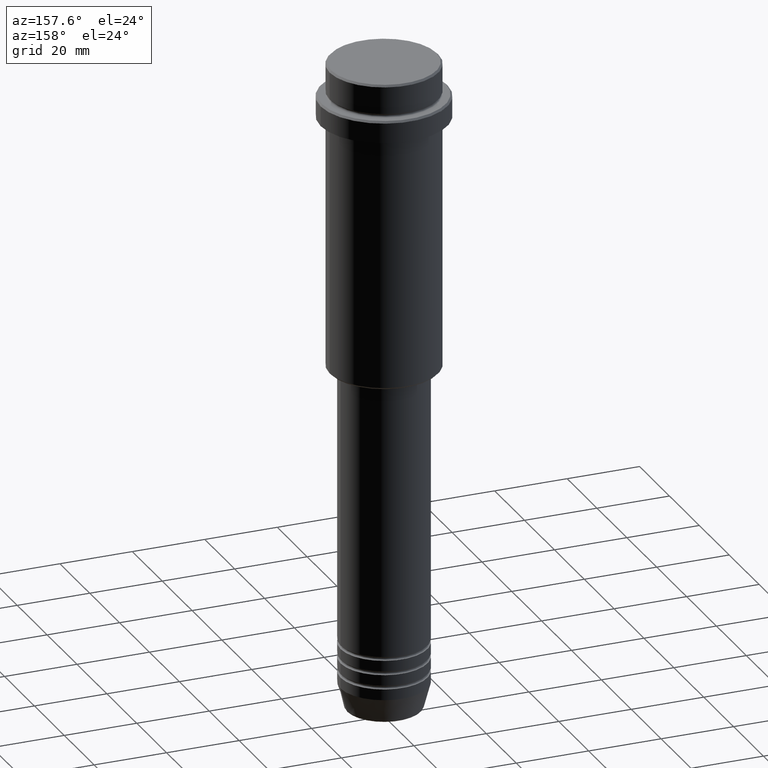
[diagram: clean part render]
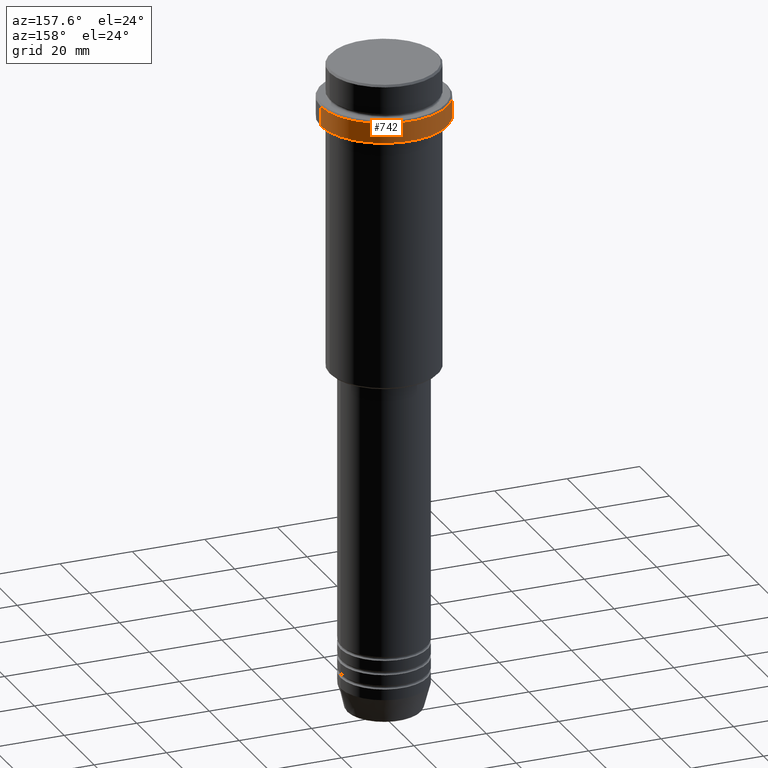
[diagram: same view with one face highlighted and labeled with its STEP entity id]
A machine part, auxiliary view. The second image highlights one B-rep face of the part: STEP entity #742.
In plain terms, the highlighted cylindrical surface (partial cylindrical patch) has radius 17.5 mm, axis along (-0, -0, 1).
Its self-contained STEP definition (entity closure, byte-faithful):
#39 = CARTESIAN_POINT ( 'NONE',  ( -17.50000000000000000, 2.143131898507868248E-15, -9.500000000000000000 ) ) ;
#110 = CYLINDRICAL_SURFACE ( 'NONE', #1384, 17.50000000000000000 ) ;
#145 = CIRCLE ( 'NONE', #942, 17.50000000000000000 ) ;
#171 = CIRCLE ( 'NONE', #767, 17.50000000000000000 ) ;
#183 = DIRECTION ( 'NONE',  ( 1.000000000000000000, 0.000000000000000000, 0.000000000000000000 ) ) ;
#185 = DIRECTION ( 'NONE',  ( -0.000000000000000000, -0.000000000000000000, 1.000000000000000000 ) ) ;
#309 = CARTESIAN_POINT ( 'NONE',  ( 17.50000000000000000, 0.000000000000000000, 0.000000000000000000 ) ) ;
#317 = EDGE_CURVE ( 'NONE', #572, #398, #403, .T. ) ;
#319 = CARTESIAN_POINT ( 'NONE',  ( 0.000000000000000000, 0.000000000000000000, -15.00000000000000000 ) ) ;
#398 = VERTEX_POINT ( 'NONE', #1357 ) ;
#403 = LINE ( 'NONE', #309, #1256 ) ;
#507 = CARTESIAN_POINT ( 'NONE',  ( 17.50000000000000000, 0.000000000000000000, -15.00000000000000000 ) ) ;
#508 = EDGE_CURVE ( 'NONE', #572, #1141, #145, .T. ) ;
#544 = EDGE_CURVE ( 'NONE', #1267, #398, #171, .T. ) ;
#566 = FACE_OUTER_BOUND ( 'NONE', #1011, .T. ) ;
#572 = VERTEX_POINT ( 'NONE', #507 ) ;
#722 = DIRECTION ( 'NONE',  ( -0.000000000000000000, -0.000000000000000000, 1.000000000000000000 ) ) ;
#742 = ADVANCED_FACE ( 'NONE', ( #566 ), #110, .T. ) ;
#757 = DIRECTION ( 'NONE',  ( -0.000000000000000000, -0.000000000000000000, 1.000000000000000000 ) ) ;
#767 = AXIS2_PLACEMENT_3D ( 'NONE', #1299, #974, #1307 ) ;
#818 = LINE ( 'NONE', #1339, #962 ) ;
#920 = ORIENTED_EDGE ( 'NONE', *, *, #1276, .T. ) ;
#933 = ORIENTED_EDGE ( 'NONE', *, *, #317, .F. ) ;
#942 = AXIS2_PLACEMENT_3D ( 'NONE', #319, #757, #183 ) ;
#962 = VECTOR ( 'NONE', #722, 1000.000000000000000 ) ;
#974 = DIRECTION ( 'NONE',  ( 0.000000000000000000, 0.000000000000000000, -1.000000000000000000 ) ) ;
#990 = CARTESIAN_POINT ( 'NONE',  ( 0.000000000000000000, 0.000000000000000000, 0.000000000000000000 ) ) ;
#994 = ORIENTED_EDGE ( 'NONE', *, *, #544, .T. ) ;
#995 = DIRECTION ( 'NONE',  ( -0.000000000000000000, -0.000000000000000000, 1.000000000000000000 ) ) ;
#1011 = EDGE_LOOP ( 'NONE', ( #1235, #920, #994, #933 ) ) ;
#1085 = CARTESIAN_POINT ( 'NONE',  ( -17.50000000000000000, 2.143131898507868248E-15, -15.00000000000000000 ) ) ;
#1098 = DIRECTION ( 'NONE',  ( 1.000000000000000000, 0.000000000000000000, 0.000000000000000000 ) ) ;
#1141 = VERTEX_POINT ( 'NONE', #1085 ) ;
#1235 = ORIENTED_EDGE ( 'NONE', *, *, #508, .T. ) ;
#1256 = VECTOR ( 'NONE', #185, 1000.000000000000000 ) ;
#1267 = VERTEX_POINT ( 'NONE', #39 ) ;
#1276 = EDGE_CURVE ( 'NONE', #1141, #1267, #818, .T. ) ;
#1299 = CARTESIAN_POINT ( 'NONE',  ( 0.000000000000000000, 0.000000000000000000, -9.500000000000000000 ) ) ;
#1307 = DIRECTION ( 'NONE',  ( 1.000000000000000000, 0.000000000000000000, 0.000000000000000000 ) ) ;
#1339 = CARTESIAN_POINT ( 'NONE',  ( -17.50000000000000000, 2.143131898507868248E-15, 0.000000000000000000 ) ) ;
#1357 = CARTESIAN_POINT ( 'NONE',  ( 17.50000000000000000, 0.000000000000000000, -9.500000000000000000 ) ) ;
#1384 = AXIS2_PLACEMENT_3D ( 'NONE', #990, #995, #1098 ) ;